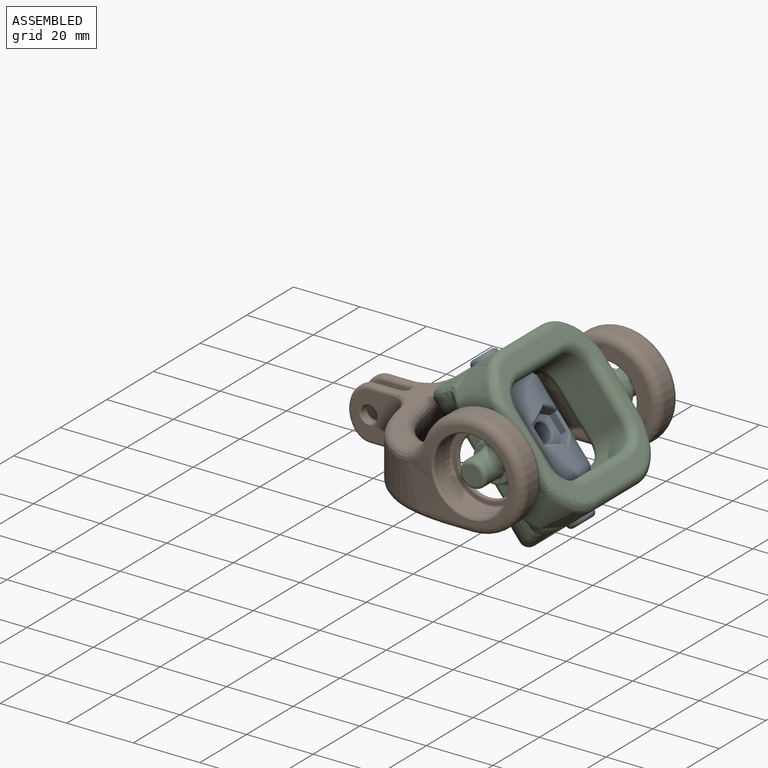
[diagram: assembled view]
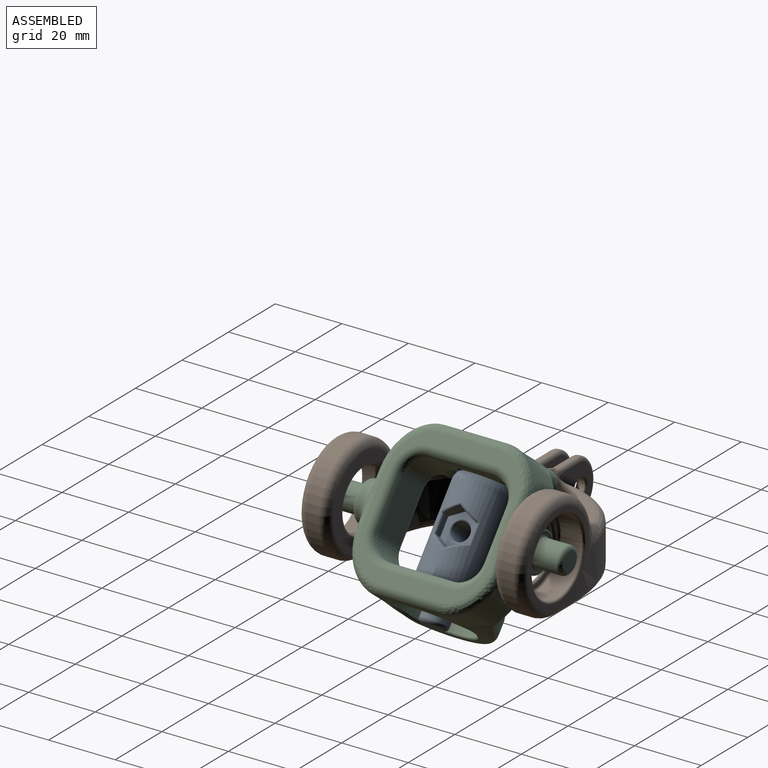
[diagram: assembled view, second angle]
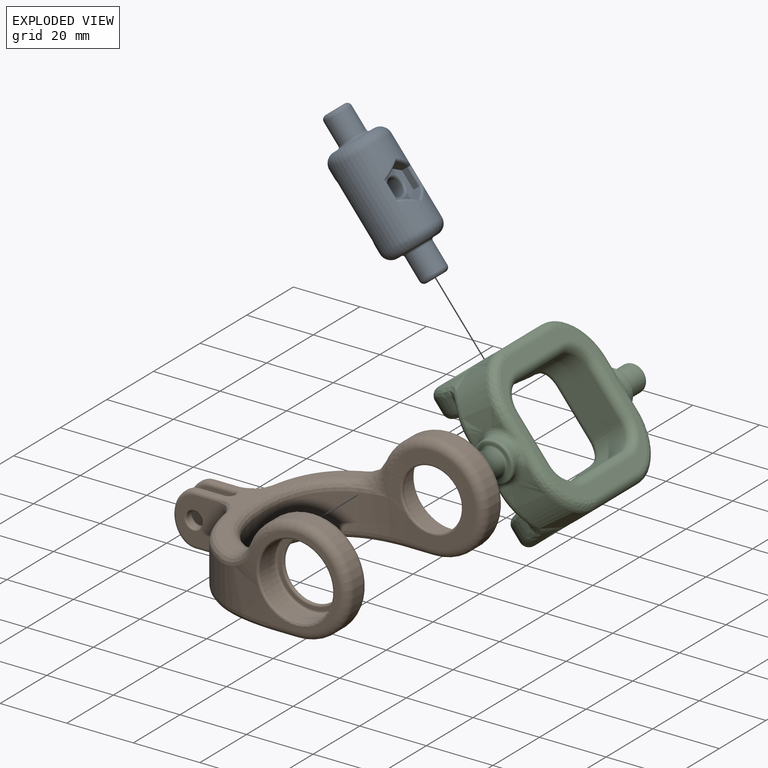
[diagram: exploded view]
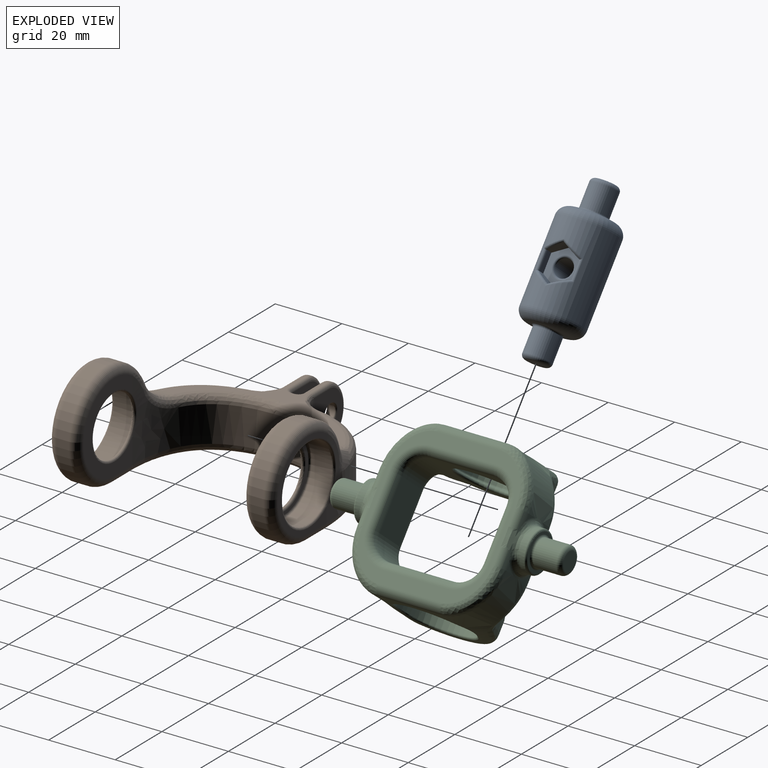
[diagram: exploded view, second angle]
ASSEMBLY  parts=3 mates=2
PART A: 42 faces, bbox 48.3x19.3x19.3 mm
  f0: cylinder r=8.89mm len=24.13mm, axis (-1,0,0), area 924.2mm2, adj f20,f21,f22,f23,f24,f25,f28,f29
  f1: plane 11.43x11.43mm, normal (1,0,0), area 35.1mm2, adj f26,f29
  f2: plane 11.43x11.43mm, normal (-1,0,0), area 35.1mm2, adj f27,f28
  f3: plane 15.24x12.02mm, normal (0,0,1), area 149mm2, adj f19,f30,f34,f35,f36
  f4: plane 4.86x0.4mm, normal (1,0,0), area 1.3mm2, adj f35,f39
  f5: plane 4.86x0.4mm, normal (-1,0,0), area 1.3mm2, adj f30,f31
  f6: cylinder r=4mm len=8mm, axis (1,0,0), area 175.6mm2, adj f27,f41
  f7: plane 5.46x5.46mm, normal (-1,0,0), area 23.4mm2, adj f41
  f8: cylinder r=4mm len=8mm, axis (-1,0,0), area 175.6mm2, adj f26,f40
  f9: plane 5.46x5.46mm, normal (1,0,0), area 23.4mm2, adj f40
  f10: plane 4.88x4.05mm, normal (-0.87,0.5,0), area 19.2mm2, adj f11,f15,f16,f24,f25
  f11: plane 4.88x4.05mm, normal (-0.87,-0.5,0), area 19.2mm2, adj f10,f12,f16,f21,f23
  f12: plane 5.57x1.98mm, normal (0,-1,0), area 11mm2, adj f11,f13,f16,f21
  f13: plane 4.88x4.05mm, normal (0.87,-0.5,0), area 19.2mm2, adj f12,f14,f16,f20,f21
  f14: plane 4.88x4.05mm, normal (0.87,0.5,0), area 19.2mm2, adj f13,f15,f16,f22,f24
  f15: plane 5.57x1.98mm, normal (0,1,0), area 11mm2, adj f10,f14,f16,f24
  f16: plane 11.15x9.65mm, normal (0,0,-1), area 46.4mm2, adj f10,f11,f12,f13,f14,f15,f18
  f17: cylinder r=2.67mm len=8.89mm, axis (0,0,1), area 149mm2, adj f18,f19
  f18: torus R=3.3mm, axis (0,0,1), area 18.2mm2, adj f16,f17
  f19: torus R=3.3mm, axis (0,0,-1), area 18.2mm2, adj f3,f17
  f20: bspline ~7.26x4.59mm, area 7.2mm2, adj f0,f13,f21,f22
  f21: cylinder r=0.64mm len=6.31mm, axis (-1,0,0), area 8.3mm2, adj f0,f11,f12,f13,f20,f23
  f22: bspline ~7.26x4.59mm, area 7.2mm2, adj f0,f14,f20,f24
  f23: bspline ~8.39x5.21mm, area 7.2mm2, adj f0,f11,f21,f25
  f24: cylinder r=0.64mm len=6.31mm, axis (-1,0,0), area 8.3mm2, adj f0,f10,f14,f15,f22,f25
  f25: bspline ~8.39x5.21mm, area 7.2mm2, adj f0,f10,f23,f24
  f26: torus R=4.64mm, axis (1,0,0), area 26.5mm2, adj f1,f8
  f27: torus R=4.64mm, axis (1,0,0), area 26.5mm2, adj f2,f6
  f28: torus R=5.71mm, axis (1,0,0), area 242.4mm2, adj f0,f2
  f29: torus R=5.71mm, axis (1,0,0), area 242.4mm2, adj f0,f1
  f30: cylinder r=1.27mm len=12.02mm, axis (0,-1,0), area 16.8mm2, adj f3,f5,f32,f33
  f31: torus R=7.62mm, axis (1,0,0), area 10.9mm2, adj f0,f5,f32,f33
  f32: bspline ~5.18x3.18mm, area 8mm2, adj f0,f30,f31,f34
  f33: bspline ~5.4x3.23mm, area 8mm2, adj f0,f30,f31,f36
  f34: cylinder r=1.27mm len=15.24mm, axis (-1,0,0), area 17.6mm2, adj f0,f3,f32,f37
  f35: cylinder r=1.27mm len=12.02mm, axis (0,1,0), area 16.8mm2, adj f3,f4,f37,f38
  f36: cylinder r=1.27mm len=15.24mm, axis (-1,0,0), area 17.6mm2, adj f0,f3,f33,f38
  f37: bspline ~5.4x3.23mm, area 8mm2, adj f0,f34,f35,f39
  f38: bspline ~5.18x3.18mm, area 8mm2, adj f0,f35,f36,f39
  f39: torus R=7.62mm, axis (1,0,0), area 10.9mm2, adj f0,f4,f37,f38
  f40: torus R=2.73mm, axis (1,0,0), area 44.4mm2, adj f8,f9
  f41: torus R=2.73mm, axis (-1,0,0), area 44.4mm2, adj f6,f7
PART B: 105 faces, bbox 74.3x67.3x38.1 mm
  f0: plane 13.59x12.4mm, normal (0,1,0), area 124mm2, adj f1,f98,f99,f100,f101,f102,f103,f104
  f1: torus R=2.92mm, axis (0,-1,0), area 13mm2, adj f0,f2
  f2: cylinder r=2.41mm len=4.83mm, axis (0,1,0), area 30.8mm2, adj f1,f3
  f3: torus R=2.92mm, axis (0,1,0), area 13mm2, adj f2,f4
  f4: plane 13.59x12.83mm, normal (0,-1,0), area 131.5mm2, adj f3,f5,f94,f95,f96,f97
  f5: cylinder r=1.14mm len=7.62mm, axis (1,0,0), area 13.7mm2, adj f4,f6,f92,f94
  f6: torus R=2.41mm, axis (0,0,1), area 4.8mm2, adj f5,f7,f92,f97
  f7: cylinder r=1.14mm len=1.14mm, axis (0,-1,0), area 1.1mm2, adj f6,f8,f91,f92
  f8: plane 13.59x0.64mm, normal (-1,0,0), area 8.6mm2, adj f7,f9,f90,f97
  f9: cylinder r=1.14mm len=1.14mm, axis (0,-1,0), area 1.1mm2, adj f8,f10,f88,f89
  f10: plane 55.47x27.27mm, normal (0,0,1), area 197.8mm2, adj f9,f11,f75,f76,f77,f78,f79,f80
  f11: bspline ~35.24x15.41mm, area 104mm2, adj f10,f12,f74,f87
  f12: extruded ~25.4x24.77mm, area 531.7mm2, adj f11,f13,f47,f71,f72,f73,f74
  f13: bspline ~9.37x7.87mm, area 34.1mm2, adj f12,f14,f45,f74
  f14: cylinder r=15.88mm len=31.75mm, axis (0,-1,0), area 260.8mm2, adj f13,f15,f44,f45,f75,f92
  f15: torus R=13.33mm, axis (0,-1,0), area 223.7mm2, adj f14,f16,f43,f44
  f16: plane 26.67x20.96mm, normal (0,-1,0), area 92.4mm2, adj f15,f17,f24,f43
  f17: torus R=11.79mm, axis (0,-1,0), area 51.6mm2, adj f16,f18,f23
  f18: cylinder r=11.15mm len=22.3mm, axis (0,-1,0), area 444.9mm2, adj f17,f19,f23
  f19: torus R=10.52mm, axis (0,-1,0), area 68.4mm2, adj f18,f20
  f20: plane 21.03x21.03mm, normal (0,-1,0), area 62.4mm2, adj f19,f21
  f21: torus R=9.53mm, axis (0,1,0), area 102.6mm2, adj f20,f22,f72,f73
  f22: cylinder r=8.89mm len=10.67mm, axis (0,-1,0), area 0mm2, adj f21,f72
  f23: bspline ~19x5.63mm, area 20.3mm2, adj f17,f18,f24
  f24: extruded ~31.1x24.73mm, area 503.2mm2, adj f16,f23,f25,f26,f42,f44,f76
  f25: bspline ~14.76x9.38mm, area 52.9mm2, adj f24,f44,f75,f76
  f26: bspline ~45.19x27.4mm, area 168.4mm2, adj f24,f27,f43,f92
  f27: bspline ~9.34x8.24mm, area 14.7mm2, adj f26,f28,f41,f42
  f28: plane 13.59x12.4mm, normal (0,-1,0), area 124mm2, adj f27,f29,f30,f31,f32,f40,f42,f78
  f29: bspline ~10.16x8.57mm, area 18.9mm2, adj f28,f32,f78,f79
  f30: bspline ~8.86x8.48mm, area 14.7mm2, adj f28,f42,f76,f77
  f31: cylinder r=1.14mm len=7.19mm, axis (1,0,0), area 12.9mm2, adj f28,f32,f41,f92
  f32: bspline ~10.16x7mm, area 18.9mm2, adj f28,f29,f31,f33
  f33: extruded ~7.94x6.35mm, area 8.5mm2, adj f32,f34,f79,f92
  f34: bspline ~10.16x8.57mm, area 18.9mm2, adj f33,f35,f38,f39
  f35: plane 13.59x12.83mm, normal (0,1,0), area 131.5mm2, adj f34,f36,f38,f39,f80,f90
  f36: torus R=2.92mm, axis (0,-1,0), area 13mm2, adj f35,f37
  f37: cylinder r=2.41mm len=4.83mm, axis (0,1,0), area 30.8mm2, adj f36,f40
  f38: bspline ~10.16x7mm, area 18.9mm2, adj f34,f35,f79,f80
  f39: cylinder r=1.14mm len=7.62mm, axis (-1,0,0), area 13.7mm2, adj f34,f35,f91,f92
  f40: torus R=2.92mm, axis (0,1,0), area 13mm2, adj f28,f37
  f41: bspline ~9x6.23mm, area 7.3mm2, adj f27,f31,f92
  f42: cylinder r=5.08mm len=10.8mm, axis (0,0,-1), area 77.6mm2, adj f24,f27,f28,f30
  f43: cylinder r=2.54mm len=7.62mm, axis (1,0,0), area 30.4mm2, adj f15,f16,f26,f92
  f44: bspline ~8.62x7.49mm, area 33mm2, adj f14,f15,f24,f25
  f45: torus R=13.33mm, axis (0,1,0), area 223.7mm2, adj f13,f14,f46,f73
  f46: cylinder r=2.54mm len=7.62mm, axis (-1,0,0), area 30.4mm2, adj f45,f71,f73,f92
  f47: extruded ~25.4x24.77mm, area 475.1mm2, adj f12,f48,f67,f68,f70,f87
  f48: bspline ~13.08x3.04mm, area 11.5mm2, adj f47,f49,f50
  f49: cylinder r=8.89mm len=10.67mm, axis (0,1,0), area 0mm2, adj f48,f50
  f50: torus R=9.53mm, axis (0,1,0), area 102.6mm2, adj f48,f49,f51,f67
  f51: plane 21.03x21.03mm, normal (0,1,0), area 62.4mm2, adj f50,f52
  f52: torus R=10.52mm, axis (0,1,0), area 68.4mm2, adj f51,f53
  f53: cylinder r=11.15mm len=22.3mm, axis (0,1,0), area 444.9mm2, adj f52,f54,f66
  f54: torus R=11.79mm, axis (0,-1,0), area 51.6mm2, adj f53,f55,f66
  f55: plane 26.67x20.96mm, normal (0,1,0), area 92.4mm2, adj f54,f56,f58,f65
  f56: cylinder r=2.54mm len=7.62mm, axis (-1,0,0), area 30.4mm2, adj f55,f57,f58,f92
  f57: bspline ~34.99x27.09mm, area 168.4mm2, adj f56,f65,f92,f104
  f58: torus R=13.33mm, axis (0,-1,0), area 223.7mm2, adj f55,f56,f59,f64
  f59: cylinder r=15.88mm len=31.75mm, axis (0,-1,0), area 261.2mm2, adj f58,f60,f62,f64,f68,f85,f92
  f60: torus R=13.33mm, axis (0,1,0), area 223.7mm2, adj f59,f61,f67,f68
  f61: cylinder r=2.54mm len=7.62mm, axis (1,0,0), area 30.4mm2, adj f60,f67,f70,f92
  f62: bspline ~11.15x10.07mm, area 22.6mm2, adj f59,f63,f84,f85
  f63: bspline ~10.15x8.74mm, area 24.3mm2, adj f62,f64,f84
  f64: bspline ~17.02x8.46mm, area 49.4mm2, adj f58,f59,f63,f65
  f65: extruded ~31.1x24.73mm, area 485mm2, adj f55,f57,f64,f66,f84,f98
  f66: bspline ~19x5.63mm, area 20.3mm2, adj f53,f54,f65
  f67: plane 26.67x20.96mm, normal (0,-1,0), area 206.5mm2, adj f47,f50,f60,f61
  f68: bspline ~17.25x8.66mm, area 41.3mm2, adj f47,f59,f60,f69,f86
  f69: bspline ~10.87x8.76mm, area 0mm2, adj f68,f86,f87
  f70: bspline ~38.08x37.44mm, area 168.2mm2, adj f47,f61,f71,f92
  f71: bspline ~38.08x37.44mm, area 168.2mm2, adj f12,f46,f70,f92
  f72: bspline ~14.56x3.76mm, area 11.5mm2, adj f12,f21,f22
  f73: plane 26.67x20.96mm, normal (0,1,0), area 206.5mm2, adj f12,f21,f45,f46
  f74: bspline ~13.58x9.71mm, area 54.6mm2, adj f11,f12,f13,f75
  f75: cylinder r=10.16mm len=9.35mm, axis (0,-1,0), area 46.6mm2, adj f10,f14,f25,f74
  f76: bspline ~26.68x17.24mm, area 98mm2, adj f10,f24,f25,f30
  f77: bspline ~8.44x6.23mm, area 7.3mm2, adj f10,f30,f78
  f78: cylinder r=1.14mm len=7.19mm, axis (1,0,0), area 12.9mm2, adj f10,f28,f29,f77
  f79: extruded ~7.94x6.35mm, area 8.5mm2, adj f10,f29,f33,f38
  f80: cylinder r=1.14mm len=7.62mm, axis (-1,0,0), area 13.7mm2, adj f10,f35,f38,f88
  f81: extruded ~7.94x6.35mm, area 8.5mm2, adj f10,f82,f95,f101
  f82: extruded ~7.94x6.35mm, area 8.5mm2, adj f81,f92,f94,f102
  f83: bspline ~9x6.23mm, area 7.3mm2, adj f10,f99,f100
  f84: bspline ~29.18x27.7mm, area 117.9mm2, adj f10,f62,f63,f65,f99
  f85: cylinder r=10.16mm len=9.35mm, axis (0,-1,0), area 7.6mm2, adj f10,f59,f62,f86
  f86: bspline ~9.56x6.26mm, area 20.7mm2, adj f10,f68,f69,f85
  f87: bspline ~37.21x23.4mm, area 114.7mm2, adj f10,f11,f47,f69
  f88: torus R=2.41mm, axis (0,0,-1), area 4.8mm2, adj f9,f10,f80,f90
  f89: torus R=2.41mm, axis (0,0,-1), area 4.8mm2, adj f9,f10,f96,f97
  f90: cylinder r=1.27mm len=13.59mm, axis (0,0,1), area 27.1mm2, adj f8,f35,f88,f91
  f91: torus R=2.41mm, axis (0,0,1), area 4.8mm2, adj f7,f39,f90,f92
  f92: plane 62.23x50.8mm, normal (0,0,-1), area 381.9mm2, adj f5,f6,f7,f14,f26,f31,f33,f39
  f93: bspline ~8.44x6.23mm, area 7.3mm2, adj f92,f103,f104
  f94: bspline ~10.16x7mm, area 18.9mm2, adj f4,f5,f82,f95
  f95: bspline ~10.16x8.57mm, area 18.9mm2, adj f4,f81,f94,f96
  f96: cylinder r=1.14mm len=7.62mm, axis (1,0,0), area 13.7mm2, adj f4,f10,f89,f95
  f97: cylinder r=1.27mm len=13.59mm, axis (0,0,1), area 27.1mm2, adj f4,f6,f8,f89
  f98: cylinder r=5.08mm len=10.8mm, axis (0,0,-1), area 77.6mm2, adj f0,f65,f99,f104
  f99: bspline ~9.34x8.24mm, area 14.7mm2, adj f0,f83,f84,f98
  f100: cylinder r=1.14mm len=7.19mm, axis (-1,0,0), area 12.9mm2, adj f0,f10,f83,f101
  f101: bspline ~10.16x8.57mm, area 18.9mm2, adj f0,f81,f100,f102
  f102: bspline ~10.16x7mm, area 18.9mm2, adj f0,f82,f101,f103
  f103: cylinder r=1.14mm len=7.19mm, axis (-1,0,0), area 12.9mm2, adj f0,f92,f93,f102
  f104: bspline ~8.86x8.48mm, area 14.7mm2, adj f0,f57,f93,f98
PART C: 161 faces, bbox 45.8x69.9x33.1 mm
  f0: plane 3.18x1.8mm, normal (0,1,0), area 2.3mm2, adj f1,f159,f160
  f1: extruded ~22.67x15.24mm, area 267.7mm2, adj f0,f2,f150,f151,f152,f153,f154,f155
  f2: bspline ~13.44x4.87mm, area 30.8mm2, adj f1,f3,f150,f160
  f3: plane 28.6x2.76mm, normal (0,0,1), area 36.7mm2, adj f2,f4,f143,f144,f145,f146,f147,f148
  f4: bspline ~6.91x3.06mm, area 13.2mm2, adj f3,f5,f143,f160
  f5: bspline ~6.25x1.84mm, area 9.1mm2, adj f4,f6,f7,f136
  f6: bspline ~5.55x3.33mm, area 7.5mm2, adj f5,f136,f159,f160
  f7: bspline ~5.55x3.33mm, area 7.5mm2, adj f5,f8,f136,f143
  f8: torus R=7.94mm, axis (0,1,0), area 9.3mm2, adj f7,f9,f135,f136
  f9: plane 3.18x1.8mm, normal (0,1,0), area 2.3mm2, adj f8,f10,f143
  f10: extruded ~22.67x15.24mm, area 267.7mm2, adj f9,f11,f128,f129,f130,f131,f132,f133
  f11: bspline ~19.44x18.21mm, area 81.5mm2, adj f10,f12,f20,f127
  f12: cylinder r=2.54mm len=4.93mm, axis (-1,0,0), area 17.7mm2, adj f11,f13,f19,f20,f134
  f13: bspline ~5.55x3.33mm, area 7.5mm2, adj f12,f14,f15,f136
  f14: torus R=7.94mm, axis (0,1,0), area 9.3mm2, adj f13,f134,f135,f136
  f15: bspline ~6.25x1.84mm, area 9.1mm2, adj f13,f16,f19,f136
  f16: bspline ~5.55x3.33mm, area 7.5mm2, adj f15,f17,f18,f136
  f17: torus R=7.94mm, axis (0,1,0), area 9.3mm2, adj f16,f136,f157,f158
  f18: cylinder r=2.54mm len=4.93mm, axis (-1,0,0), area 17.7mm2, adj f16,f19,f20,f156,f157
  f19: bspline ~6.91x3.06mm, area 13.2mm2, adj f12,f15,f18,f20
  f20: plane 40.64x39.53mm, normal (0,0,-1), area 335.7mm2, adj f11,f12,f18,f19,f21,f114,f115,f116
  f21: cylinder r=2.54mm len=19.05mm, axis (0,1,0), area 76mm2, adj f20,f22,f114,f120
  f22: plane 19.05x9.8mm, normal (1,0,0), area 94.9mm2, adj f21,f23,f110,f113
  f23: cylinder r=6.35mm len=22.67mm, axis (0,0,-1), area 129.8mm2, adj f22,f24,f26,f107,f108,f109,f120
  f24: bspline ~9.26x1.62mm, area 6.6mm2, adj f23,f25,f110
  f25: cylinder r=9.53mm len=6.63mm, axis (-1,0,0), area 0mm2, adj f24,f110
  f26: plane 19.05x9.8mm, normal (1,0,0), area 71.2mm2, adj f23,f27,f110,f113
  f27: torus R=13.33mm, axis (1,0,0), area 94.9mm2, adj f26,f28,f105,f107
  f28: cylinder r=15.88mm len=31.45mm, axis (-1,0,0), area 171.6mm2, adj f27,f29,f102,f103,f104,f105,f107,f152
  f29: cylinder r=2.54mm len=3.64mm, axis (-1,0,0), area 5.7mm2, adj f28,f30,f100
  f30: bspline ~6.27x5.32mm, area 19.7mm2, adj f29,f31,f99,f102
  f31: extruded ~22.67x15.24mm, area 267.7mm2, adj f30,f32,f38,f96,f97,f98,f99,f102
  f32: bspline ~14.15x3.03mm, area 15.8mm2, adj f31,f33,f36,f37
  f33: cylinder r=11.15mm len=22.3mm, axis (-1,0,0), area 442.9mm2, adj f32,f34,f36,f37,f154
  f34: torus R=10.52mm, axis (-1,0,0), area 68.4mm2, adj f33,f35
  f35: plane 21.03x21.03mm, normal (-1,0,0), area 23.1mm2, adj f34,f110
  f36: torus R=11.79mm, axis (1,0,0), area 21.4mm2, adj f32,f33,f153,f154
  f37: torus R=11.79mm, axis (1,0,0), area 21.4mm2, adj f32,f33,f154,f155
  f38: bspline ~13.44x4.87mm, area 30.8mm2, adj f31,f39,f95,f99
  f39: plane 28.6x2.76mm, normal (0,0,1), area 36.7mm2, adj f38,f40,f41,f91,f92,f93,f94,f95
  f40: cylinder r=2.54mm len=15.24mm, axis (-1,0,0), area 60.8mm2, adj f39,f41,f108,f109
  f41: torus R=8.89mm, axis (0,0,1), area 19.7mm2, adj f39,f40,f42,f90
  f42: cylinder r=6.35mm len=22.67mm, axis (0,0,-1), area 129.8mm2, adj f41,f43,f87,f88,f89,f109,f118
  f43: plane 19.05x9.8mm, normal (-1,0,0), area 71.2mm2, adj f42,f44,f81,f85
  f44: torus R=13.33mm, axis (1,0,0), area 94.9mm2, adj f43,f45,f47,f89
  f45: bspline ~15.91x6.52mm, area 47mm2, adj f44,f46,f47,f85,f145
  f46: bspline ~4.94x4.72mm, area 6.7mm2, adj f45,f145,f146
  f47: cylinder r=15.88mm len=31.45mm, axis (-1,0,0), area 171.6mm2, adj f44,f45,f48,f78,f79,f80,f89,f131
  f48: bspline ~10.72x6.41mm, area 32.5mm2, adj f47,f49,f77,f80
  f49: extruded ~22.67x15.24mm, area 267.7mm2, adj f48,f50,f68,f69,f70,f76,f77,f92
  f50: plane 3.18x1.8mm, normal (0,-1,0), area 2.3mm2, adj f49,f51,f93
  f51: torus R=7.94mm, axis (0,1,0), area 9.3mm2, adj f50,f52,f56,f68
  f52: bspline ~5.55x3.33mm, area 7.5mm2, adj f51,f53,f56,f93
  f53: bspline ~6.25x1.84mm, area 9.1mm2, adj f52,f54,f56,f94
  f54: bspline ~5.55x3.33mm, area 7.5mm2, adj f53,f55,f56,f95
  f55: torus R=7.94mm, axis (0,1,0), area 9.3mm2, adj f54,f56,f96,f97
  f56: cylinder r=6.03mm len=12.07mm, axis (0,1,0), area 55.3mm2, adj f51,f52,f53,f54,f55,f57,f58,f59
  f57: torus R=7.94mm, axis (0,1,0), area 9.3mm2, adj f56,f58,f68,f69
  f58: bspline ~5.55x3.33mm, area 7.5mm2, adj f56,f57,f59,f121
  f59: bspline ~6.25x1.84mm, area 9.1mm2, adj f56,f58,f60,f126
  f60: bspline ~5.55x3.33mm, area 7.5mm2, adj f56,f59,f61,f125
  f61: torus R=7.94mm, axis (0,1,0), area 9.3mm2, adj f56,f60,f97,f98
  f62: torus R=5.4mm, axis (0,-1,0), area 36.4mm2, adj f56,f63
  f63: plane 10.8x10.8mm, normal (0,-1,0), area 24mm2, adj f62,f64
  f64: torus R=4.64mm, axis (0,-1,0), area 26.5mm2, adj f63,f65
  f65: cylinder r=4mm len=8mm, axis (0,1,0), area 175.6mm2, adj f64,f66
  f66: torus R=2.73mm, axis (0,-1,0), area 44.4mm2, adj f65,f67
  f67: plane 5.46x5.46mm, normal (0,-1,0), area 23.4mm2, adj f66
  f68: bspline ~7.74x2.64mm, area 11.3mm2, adj f49,f51,f56,f57
  f69: plane 3.18x1.8mm, normal (0,-1,0), area 2.3mm2, adj f49,f57,f121
  f70: bspline ~14.15x3.03mm, area 15.8mm2, adj f49,f71,f72,f75
  f71: torus R=11.79mm, axis (1,0,0), area 21.4mm2, adj f70,f72,f129,f130
  f72: cylinder r=11.15mm len=22.3mm, axis (1,0,0), area 442.9mm2, adj f70,f71,f73,f75,f129
  f73: torus R=10.52mm, axis (1,0,0), area 68.4mm2, adj f72,f74
  f74: plane 21.03x21.03mm, normal (1,0,0), area 23.1mm2, adj f73,f81
  f75: torus R=11.79mm, axis (1,0,0), area 21.4mm2, adj f70,f72,f128,f129
  f76: bspline ~4.32x3.31mm, area 6.3mm2, adj f49,f77,f91,f92
  f77: bspline ~6.27x5.32mm, area 19.7mm2, adj f48,f49,f76,f78
  f78: cylinder r=2.54mm len=3.64mm, axis (-1,0,0), area 5.7mm2, adj f47,f77,f91
  f79: cylinder r=2.54mm len=3.64mm, axis (-1,0,0), area 5.7mm2, adj f47,f132,f145
  f80: torus R=13.33mm, axis (1,0,0), area 94.9mm2, adj f47,f48,f130,f131
  f81: torus R=10.16mm, axis (1,0,0), area 106.8mm2, adj f43,f74,f82,f83,f84,f87,f88
  f82: cylinder r=9.53mm len=6.63mm, axis (-1,0,0), area 0mm2, adj f81,f87
  f83: cylinder r=9.53mm len=3.31mm, axis (-1,0,0), area 0mm2, adj f81,f84
  f84: bspline ~9.26x1.62mm, area 6.6mm2, adj f81,f83,f85
  f85: cylinder r=6.35mm len=22.67mm, axis (0,0,-1), area 129.8mm2, adj f43,f45,f84,f86,f88,f116,f146
  f86: plane 15.24x10.8mm, normal (0,-1,0), area 164.5mm2, adj f85,f113,f115,f147
  f87: bspline ~9.26x1.62mm, area 6.6mm2, adj f42,f81,f82
  f88: plane 19.05x9.8mm, normal (-1,0,0), area 94.9mm2, adj f42,f81,f85,f117
  f89: bspline ~15.91x6.52mm, area 47mm2, adj f42,f44,f47,f90,f91
  f90: bspline ~4.94x4.72mm, area 6.5mm2, adj f41,f89,f91
  f91: bspline ~4.36x3.55mm, area 8.7mm2, adj f39,f76,f78,f89,f90
  f92: bspline ~13.44x4.87mm, area 30.8mm2, adj f39,f49,f76,f93
  f93: cylinder r=2.54mm len=4.93mm, axis (1,0,0), area 17.7mm2, adj f39,f50,f52,f92,f94
  f94: bspline ~6.91x3.06mm, area 13.2mm2, adj f39,f53,f93,f95
  f95: cylinder r=2.54mm len=4.93mm, axis (1,0,0), area 17.7mm2, adj f38,f39,f54,f94,f96
  f96: plane 3.18x1.8mm, normal (0,-1,0), area 2.3mm2, adj f31,f55,f95
  f97: bspline ~7.74x2.64mm, area 11.3mm2, adj f31,f55,f56,f61
  f98: plane 3.18x1.8mm, normal (0,-1,0), area 2.3mm2, adj f31,f61,f125
  f99: bspline ~3.72x3.08mm, area 6.3mm2, adj f30,f31,f38,f100
  f100: bspline ~4.36x3.55mm, area 8.7mm2, adj f29,f39,f99,f101,f107
  f101: bspline ~4.94x4.72mm, area 6.7mm2, adj f100,f107,f108
  f102: bspline ~10.72x6.41mm, area 32.5mm2, adj f28,f30,f31,f103
  f103: torus R=13.33mm, axis (1,0,0), area 94.9mm2, adj f28,f102,f152,f153
  f104: cylinder r=2.54mm len=3.64mm, axis (-1,0,0), area 5.7mm2, adj f28,f149,f151
  f105: bspline ~15.91x6.52mm, area 47mm2, adj f27,f28,f106,f113,f149
  f106: bspline ~5x4.72mm, area 6.5mm2, adj f105,f148,f149
  f107: bspline ~15.91x6.52mm, area 47mm2, adj f23,f27,f28,f100,f101
  f108: torus R=8.89mm, axis (0,0,1), area 19.7mm2, adj f23,f39,f40,f101
  f109: plane 15.24x10.8mm, normal (0,1,0), area 164.5mm2, adj f23,f40,f42,f119
  f110: torus R=10.16mm, axis (1,0,0), area 108.4mm2, adj f22,f24,f25,f26,f35,f111,f112
  f111: cylinder r=9.53mm len=6.63mm, axis (-1,0,0), area 0mm2, adj f110,f112
  f112: bspline ~9.26x1.62mm, area 6.6mm2, adj f110,f111,f113
  f113: cylinder r=6.35mm len=22.67mm, axis (0,0,-1), area 129.8mm2, adj f22,f26,f86,f105,f112,f114,f148
  f114: torus R=8.89mm, axis (0,0,1), area 45.6mm2, adj f20,f21,f113,f115
  f115: cylinder r=2.54mm len=15.24mm, axis (1,0,0), area 60.8mm2, adj f20,f86,f114,f116
  f116: torus R=8.89mm, axis (0,0,1), area 45.6mm2, adj f20,f85,f115,f117
  f117: cylinder r=2.54mm len=19.05mm, axis (0,-1,0), area 76mm2, adj f20,f88,f116,f118
  f118: torus R=8.89mm, axis (0,0,1), area 45.6mm2, adj f20,f42,f117,f119
  f119: cylinder r=2.54mm len=15.24mm, axis (-1,0,0), area 60.8mm2, adj f20,f109,f118,f120
  f120: torus R=8.89mm, axis (0,0,1), area 45.6mm2, adj f20,f21,f23,f119
  f121: cylinder r=2.54mm len=4.93mm, axis (1,0,0), area 17.7mm2, adj f20,f58,f69,f122,f126
  f122: bspline ~19.44x18.21mm, area 81.5mm2, adj f20,f49,f121,f127
  f123: cylinder r=2.54mm len=19.05mm, axis (0,-1,0), area 76mm2, adj f20,f124,f155,f156
  f124: bspline ~19.44x18.24mm, area 81.5mm2, adj f20,f31,f123,f125
  f125: cylinder r=2.54mm len=4.93mm, axis (1,0,0), area 17.7mm2, adj f20,f60,f98,f124,f126
  f126: bspline ~6.91x3.06mm, area 13.2mm2, adj f20,f59,f121,f125
  f127: cylinder r=2.54mm len=19.05mm, axis (0,1,0), area 76mm2, adj f11,f20,f122,f128
  f128: plane 19.05x6.39mm, normal (1,0,0), area 57.2mm2, adj f10,f49,f75,f127
  f129: bspline ~14.15x3.03mm, area 15.8mm2, adj f10,f71,f72,f75
  f130: plane 19.05x6.39mm, normal (1,0,0), area 33.5mm2, adj f10,f49,f71,f80
  f131: bspline ~10.72x6.41mm, area 32.5mm2, adj f10,f47,f80,f132
  f132: bspline ~6.26x5.3mm, area 19.7mm2, adj f10,f79,f131,f133
  f133: bspline ~4.32x3.31mm, area 6.3mm2, adj f10,f132,f144,f145
  f134: plane 3.18x1.8mm, normal (0,1,0), area 2.3mm2, adj f10,f12,f14
  f135: bspline ~7.74x2.64mm, area 11.3mm2, adj f8,f10,f14,f136
  f136: cylinder r=6.03mm len=12.07mm, axis (0,-1,0), area 55.3mm2, adj f5,f6,f7,f8,f13,f14,f15,f16
  f137: torus R=5.4mm, axis (0,1,0), area 36.4mm2, adj f136,f138
  f138: plane 10.8x10.8mm, normal (0,1,0), area 24mm2, adj f137,f139
  f139: torus R=4.64mm, axis (0,1,0), area 26.5mm2, adj f138,f140
  f140: cylinder r=4mm len=8mm, axis (0,-1,0), area 175.6mm2, adj f139,f141
  f141: torus R=2.73mm, axis (0,1,0), area 44.4mm2, adj f140,f142
  f142: plane 5.46x5.46mm, normal (0,1,0), area 23.4mm2, adj f141
  f143: cylinder r=2.54mm len=4.93mm, axis (1,0,0), area 17.7mm2, adj f3,f4,f7,f9,f144
  f144: bspline ~13.44x4.87mm, area 30.8mm2, adj f3,f10,f133,f143
  f145: bspline ~5.2x3.55mm, area 8.7mm2, adj f3,f45,f46,f79,f133
  f146: torus R=8.89mm, axis (0,0,-1), area 19.7mm2, adj f3,f46,f85,f147
  f147: cylinder r=2.54mm len=15.24mm, axis (-1,0,0), area 60.8mm2, adj f3,f86,f146,f148
  f148: torus R=8.89mm, axis (0,0,-1), area 19.7mm2, adj f3,f106,f113,f147
  f149: bspline ~5.2x3.55mm, area 8.7mm2, adj f3,f104,f105,f106,f150
  f150: bspline ~4.32x3.31mm, area 6.3mm2, adj f1,f2,f149,f151
  f151: bspline ~6.27x5.32mm, area 19.7mm2, adj f1,f104,f150,f152
  f152: bspline ~10.72x6.41mm, area 32.5mm2, adj f1,f28,f103,f151
  f153: plane 19.05x6.39mm, normal (-1,0,0), area 33.5mm2, adj f1,f31,f36,f103
  f154: bspline ~14.15x3.03mm, area 15.8mm2, adj f1,f33,f36,f37
  f155: plane 19.05x6.39mm, normal (-1,0,0), area 57.2mm2, adj f1,f31,f37,f123
  f156: bspline ~19.44x16.9mm, area 81.5mm2, adj f1,f18,f20,f123
  f157: plane 3.18x1.8mm, normal (0,1,0), area 2.3mm2, adj f1,f17,f18
  f158: bspline ~7.74x2.64mm, area 11.3mm2, adj f1,f17,f136,f159
  f159: torus R=7.94mm, axis (0,1,0), area 9.3mm2, adj f0,f6,f136,f158
  f160: cylinder r=2.54mm len=4.93mm, axis (1,0,0), area 17.7mm2, adj f0,f2,f3,f4,f6
PLACE A rot(axis=(0,-1,0),128.9deg) t=(6.18,2.09,13.32)mm
PLACE B at identity fixed
PLACE C rot(axis=(0,-1,0),128.9deg) t=(6.18,2.09,13.32)mm
MATE revolute B.f17 <-> C.f51  axis (0,-1,0) through (0,-23.94,8.33)mm
MATE revolute A.f0 <-> C.f72  axis (-0.63,0,0.78) through (-21.34,11.62,22.12)mm
